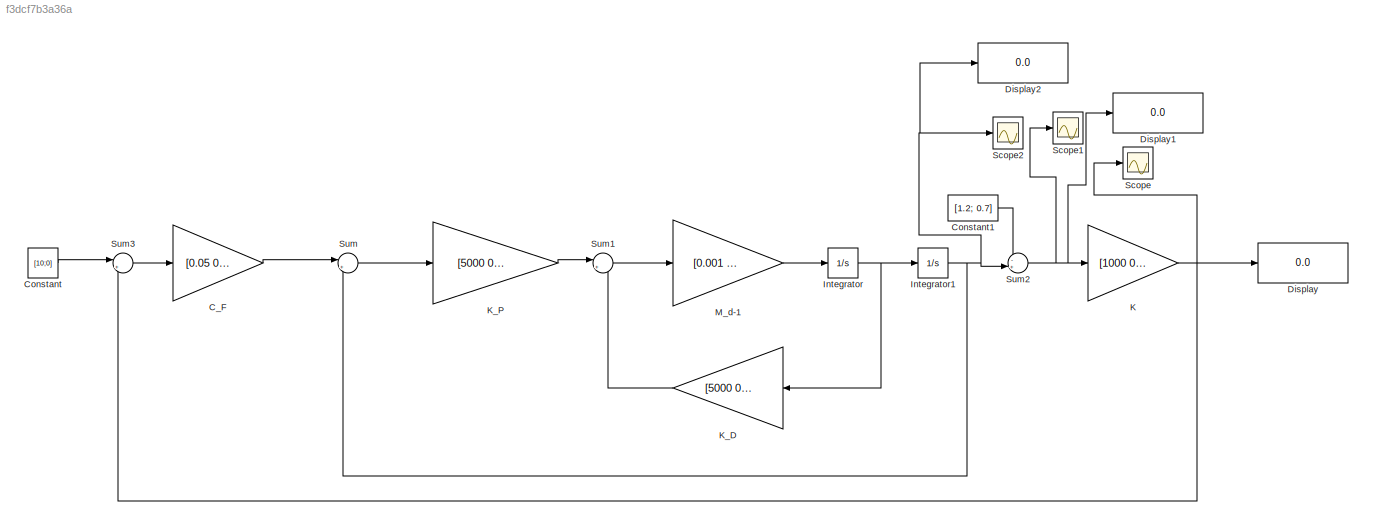
MODEL slx_f3dcf7b3a36a
KIND model
CONFIG AbsTol = auto
CONFIG EnableMultiTasking = off
CONFIG FixedStep = auto
CONFIG MaxStep = auto
CONFIG MinStep = auto
CONFIG RelTol = 1e-3
CONFIG SampleTimeConstraint = Unconstrained
CONFIG SolverName = VariableStepAuto
CONFIG StartTime = 0.0
CONFIG StopTime = 10.0
BLOCK [Gain] C_F
  Gain = [0.05 0;0 0]
  Multiplication = Matrix(K*u)
BLOCK [Constant] Constant
  Value = [10;0]
BLOCK [Constant] Constant1
  Value = [1.2; 0.7]
BLOCK [Display] Display
  Decimation = 1
BLOCK [Display] Display1
  Decimation = 1
BLOCK [Display] Display2
  Decimation = 1
BLOCK [Integrator] Integrator
  InitialCondition = [0;0]
BLOCK [Integrator] Integrator1
  InitialCondition = [1.3; 0.7]
BLOCK [Gain] K
  Gain = [1000 0;0 0]
  Multiplication = Matrix(K*u)
BLOCK [Gain] K_D
  Gain = [5000 0;0 5000]
  Multiplication = Matrix(K*u)
BLOCK [Gain] K_P
  Gain = [5000 0;0 5000]
  Multiplication = Matrix(K*u)
BLOCK [Gain] M_d-1
  Gain = [0.001 0;0 0.001]
  Multiplication = Matrix(K*u)
BLOCK [Scope] Scope
  Floating = off
  NumInputPorts = 1
  ScopeSpecificationString = Simulink.scopes.TimeScopeBlockCfg('CurrentConfiguration', extmgr.ConfigurationSet(extmgr.Configuration('Core','General UI',true),extmgr.Configuration('Core','Source UI',true),extmgr.Configuration('Sources','WiredSimulink',true),extmgr.Configuration('Visuals','Time Domain',true,'SerializedDisplays',{struct('MinYLimReal','-103.26086','MaxYLimReal','122.58454','YLabelReal','','MinYLimMag',' 0.00000',...<+1372ch>
BLOCK [Scope] Scope1
  Floating = off
  NumInputPorts = 1
  ScopeSpecificationString = Simulink.scopes.TimeScopeBlockCfg('CurrentConfiguration', extmgr.ConfigurationSet(extmgr.Configuration('Core','General UI',true),extmgr.Configuration('Core','Source UI',true),extmgr.Configuration('Sources','WiredSimulink',true,'DataLoggingVariableName','ScopeData1'),extmgr.Configuration('Visuals','Time Domain',true,'SerializedDisplays',{struct('MinYLimReal','-0.8','MaxYLimReal','0.2','YLabelReal',...<+1379ch>
BLOCK [Scope] Scope2
  Floating = off
  NumInputPorts = 1
  ScopeSpecificationString = Simulink.scopes.TimeScopeBlockCfg('CurrentConfiguration', extmgr.ConfigurationSet(extmgr.Configuration('Core','General UI',true),extmgr.Configuration('Core','Source UI',true),extmgr.Configuration('Sources','WiredSimulink',true,'DataLoggingVariableName','ScopeData1'),extmgr.Configuration('Visuals','Time Domain',true,'SerializedDisplays',{struct('MinYLimReal','-0.1625','MaxYLimReal','1.4625','YLabel...<+1411ch>
BLOCK [Sum] Sum
  Inputs = |+-
BLOCK [Sum] Sum1
  Inputs = |+-
BLOCK [Sum] Sum2
  Inputs = -+|
BLOCK [Sum] Sum3
  Inputs = |+-
LINE C_F:1 -> Sum:1
LINE Constant1:1 -> Sum2:1
LINE Constant:1 -> Sum3:1
NET Integrator1:1 -> Display2:1, Scope2:1, Sum2:2, Sum:2
NET Integrator:1 -> Integrator1:1, K_D:1
NET K:1 -> Display:1, Scope:1, Sum3:2
LINE K_D:1 -> Sum1:2
LINE K_P:1 -> Sum1:1
LINE M_d-1:1 -> Integrator:1
LINE Sum1:1 -> M_d-1:1
NET Sum2:1 -> Display1:1, K:1, Scope1:1
LINE Sum3:1 -> C_F:1
LINE Sum:1 -> K_P:1
note: NET lines group one-source signal fan-out (src -> all destinations, sorted); 1:1 wires keep LINE
